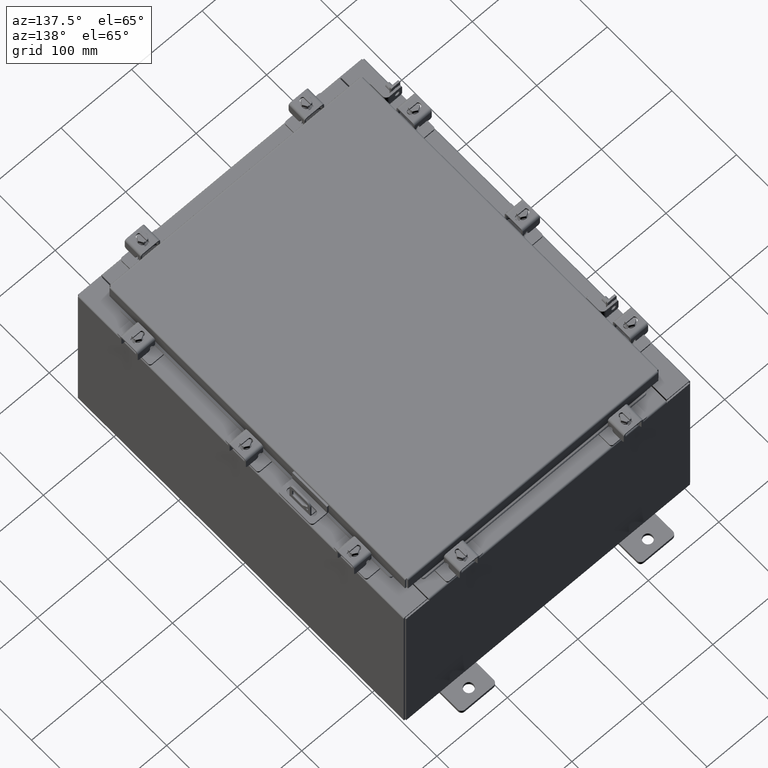
[diagram: clean part render]
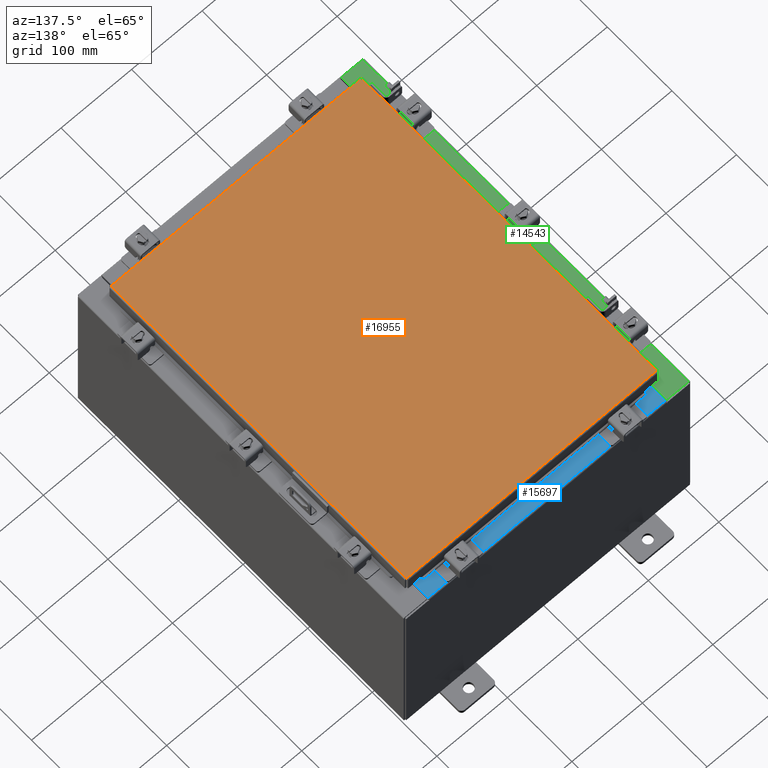
[diagram: same view with three faces highlighted in distinct colors, each labeled with its STEP entity id]
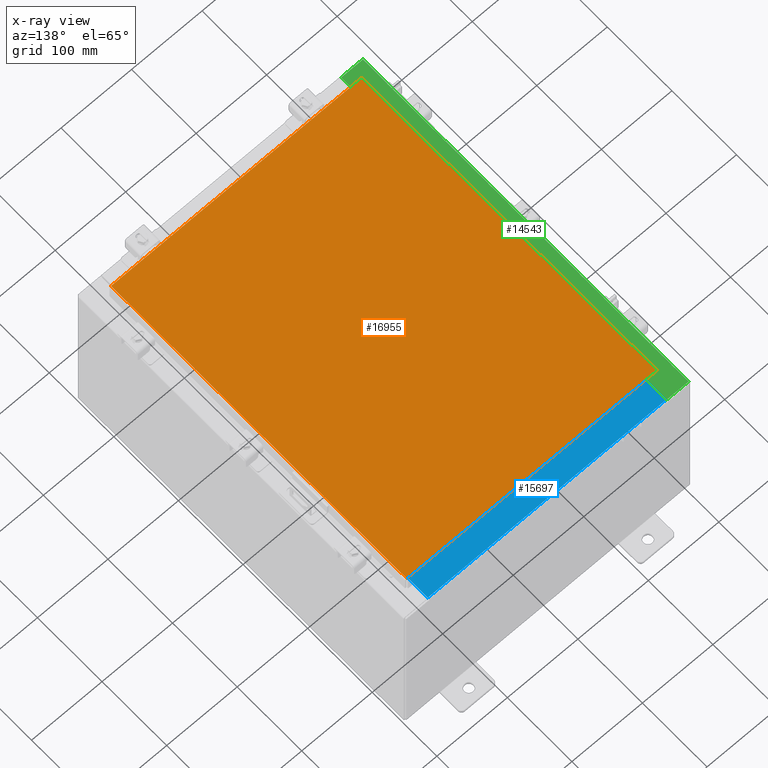
[diagram: x-ray of the same camera — body ghosted, the three highlighted faces saturated]
A machine part, auxiliary view with three faces highlighted in distinct colors.
The next image is the same camera in x-ray (body ghosted, the three faces saturated) — at least one of them is partly hidden behind the body in this view.
Their STEP definitions:

[orange] entity #16955 — the highlighted planar face has unit normal (0, 0, -1).
#26 = DIRECTION ( 'NONE',  ( 0.0000000000000000000, -1.000000000000000000, 0.0000000000000000000 ) ) ;
#29 = ORIENTED_EDGE ( 'NONE', *, *, #4834, .T. ) ;
#484 = AXIS2_PLACEMENT_3D ( 'NONE', #19545, #17881, #7437 ) ;
#1040 = VECTOR ( 'NONE', #15083, 39.37007874015748100 ) ;
#1662 = LINE ( 'NONE', #7092, #19625 ) ;
#2131 = LINE ( 'NONE', #2922, #1040 ) ;
#2922 = CARTESIAN_POINT ( 'NONE',  ( 6.990299999999996800, -9.006300000000003100, 0.0000000000000000000 ) ) ;
#4348 = LINE ( 'NONE', #7462, #13043 ) ;
#4638 = CARTESIAN_POINT ( 'NONE',  ( -6.990300000000003100, 9.006299999999996000, 0.0000000000000000000 ) ) ;
#4834 = EDGE_CURVE ( 'NONE', #9899, #10934, #2131, .T. ) ;
#5708 = PLANE ( 'NONE',  #484 ) ;
#6435 = CARTESIAN_POINT ( 'NONE',  ( 6.990299999999996800, -9.006300000000003100, 0.0000000000000000000 ) ) ;
#7092 = CARTESIAN_POINT ( 'NONE',  ( 6.990299999999996800, 9.006299999999996000, 0.0000000000000000000 ) ) ;
#7126 = LINE ( 'NONE', #8688, #11197 ) ;
#7437 = DIRECTION ( 'NONE',  ( -1.000000000000000000, 0.0000000000000000000, -0.0000000000000000000 ) ) ;
#7462 = CARTESIAN_POINT ( 'NONE',  ( -6.990300000000003100, -9.006300000000003100, 0.0000000000000000000 ) ) ;
#8688 = CARTESIAN_POINT ( 'NONE',  ( -6.990300000000003100, 9.006299999999996000, 0.0000000000000000000 ) ) ;
#9899 = VERTEX_POINT ( 'NONE', #6435 ) ;
#10934 = VERTEX_POINT ( 'NONE', #19260 ) ;
#11197 = VECTOR ( 'NONE', #26, 39.37007874015748100 ) ;
#11930 = EDGE_CURVE ( 'NONE', #20466, #17454, #7126, .T. ) ;
#12062 = FACE_OUTER_BOUND ( 'NONE', #15425, .T. ) ;
#12605 = CARTESIAN_POINT ( 'NONE',  ( -6.990300000000003100, -9.006300000000003100, 0.0000000000000000000 ) ) ;
#13043 = VECTOR ( 'NONE', #21385, 39.37007874015748100 ) ;
#15083 = DIRECTION ( 'NONE',  ( 0.0000000000000000000, 1.000000000000000000, 0.0000000000000000000 ) ) ;
#15425 = EDGE_LOOP ( 'NONE', ( #16444, #29, #17521, #17210 ) ) ;
#16444 = ORIENTED_EDGE ( 'NONE', *, *, #19528, .T. ) ;
#16955 = ADVANCED_FACE ( 'NONE', ( #12062 ), #5708, .F. ) ;
#17210 = ORIENTED_EDGE ( 'NONE', *, *, #11930, .T. ) ;
#17454 = VERTEX_POINT ( 'NONE', #12605 ) ;
#17521 = ORIENTED_EDGE ( 'NONE', *, *, #18067, .T. ) ;
#17537 = DIRECTION ( 'NONE',  ( -1.000000000000000000, -0.0000000000000000000, -0.0000000000000000000 ) ) ;
#17881 = DIRECTION ( 'NONE',  ( 0.0000000000000000000, 0.0000000000000000000, -1.000000000000000000 ) ) ;
#18067 = EDGE_CURVE ( 'NONE', #10934, #20466, #1662, .T. ) ;
#19260 = CARTESIAN_POINT ( 'NONE',  ( 6.990299999999996800, 9.006299999999996000, 0.0000000000000000000 ) ) ;
#19528 = EDGE_CURVE ( 'NONE', #17454, #9899, #4348, .T. ) ;
#19545 = CARTESIAN_POINT ( 'NONE',  ( 0.0000000000000000000, 0.0000000000000000000, 0.0000000000000000000 ) ) ;
#19625 = VECTOR ( 'NONE', #17537, 39.37007874015748100 ) ;
#20466 = VERTEX_POINT ( 'NONE', #4638 ) ;
#21385 = DIRECTION ( 'NONE',  ( 1.000000000000000000, -0.0000000000000000000, -0.0000000000000000000 ) ) ;

[blue] entity #15697 — the highlighted planar face has unit normal (0, 0, 1).
#196 = PLANE ( 'NONE',  #22366 ) ;
#1093 = CARTESIAN_POINT ( 'NONE',  ( -6.637200000000000000, -1.287299999999999200, 5.000000000000004400 ) ) ;
#1137 = DIRECTION ( 'NONE',  ( -0.0000000000000000000, 1.000000000000000000, -3.566381192773190000E-015 ) ) ;
#2512 = VERTEX_POINT ( 'NONE', #16252 ) ;
#2663 = VECTOR ( 'NONE', #7457, 39.37007874015748100 ) ;
#3701 = CARTESIAN_POINT ( 'NONE',  ( 0.0000000000000000000, 1.748382715945128500E-014, 5.000000000000000000 ) ) ;
#3709 = ORIENTED_EDGE ( 'NONE', *, *, #21576, .F. ) ;
#5441 = DIRECTION ( 'NONE',  ( 0.0000000000000000000, -1.000000000000000000, 3.566381192773190000E-015 ) ) ;
#6313 = VERTEX_POINT ( 'NONE', #13778 ) ;
#6727 = LINE ( 'NONE', #19630, #2663 ) ;
#7457 = DIRECTION ( 'NONE',  ( -1.000000000000000000, 0.0000000000000000000, 0.0000000000000000000 ) ) ;
#7987 = ORIENTED_EDGE ( 'NONE', *, *, #19775, .F. ) ;
#8112 = ORIENTED_EDGE ( 'NONE', *, *, #18216, .F. ) ;
#9214 = VECTOR ( 'NONE', #1137, 39.37007874015748100 ) ;
#9222 = DIRECTION ( 'NONE',  ( -0.0000000000000000000, -1.000000000000000000, 3.566381192773190000E-015 ) ) ;
#9508 = EDGE_CURVE ( 'NONE', #18554, #2512, #13960, .T. ) ;
#10738 = FACE_OUTER_BOUND ( 'NONE', #11143, .T. ) ;
#11122 = ORIENTED_EDGE ( 'NONE', *, *, #9508, .T. ) ;
#11143 = EDGE_LOOP ( 'NONE', ( #7987, #3709, #8112, #11122 ) ) ;
#12271 = VECTOR ( 'NONE', #9222, 39.37007874015748100 ) ;
#13778 = CARTESIAN_POINT ( 'NONE',  ( 6.637200000000000000, -1.287300000000000300, 5.000000000000004400 ) ) ;
#13960 = LINE ( 'NONE', #17326, #18595 ) ;
#15404 = VERTEX_POINT ( 'NONE', #1093 ) ;
#15697 = ADVANCED_FACE ( 'NONE', ( #10738 ), #196, .T. ) ;
#15855 = DIRECTION ( 'NONE',  ( 0.0000000000000000000, 3.566381192773190000E-015, 1.000000000000000000 ) ) ;
#16252 = CARTESIAN_POINT ( 'NONE',  ( -6.637200000000000000, -0.08770000000000026400, 5.000000000000000000 ) ) ;
#17326 = CARTESIAN_POINT ( 'NONE',  ( 0.0000000000000000000, -0.08770000000000026400, 5.000000000000000000 ) ) ;
#18216 = EDGE_CURVE ( 'NONE', #18554, #6313, #22046, .T. ) ;
#18554 = VERTEX_POINT ( 'NONE', #22210 ) ;
#18595 = VECTOR ( 'NONE', #19058, 39.37007874015748100 ) ;
#19017 = LINE ( 'NONE', #21969, #9214 ) ;
#19058 = DIRECTION ( 'NONE',  ( -1.000000000000000000, 0.0000000000000000000, 0.0000000000000000000 ) ) ;
#19630 = CARTESIAN_POINT ( 'NONE',  ( 6.637200000000000900, -1.287300000000000300, 5.000000000000004400 ) ) ;
#19775 = EDGE_CURVE ( 'NONE', #15404, #2512, #19017, .T. ) ;
#21400 = CARTESIAN_POINT ( 'NONE',  ( 6.637200000000000000, -1.300299999999999300, 5.000000000000004400 ) ) ;
#21576 = EDGE_CURVE ( 'NONE', #6313, #15404, #6727, .T. ) ;
#21969 = CARTESIAN_POINT ( 'NONE',  ( -6.637200000000000000, -0.07470000000000015500, 5.000000000000000000 ) ) ;
#22046 = LINE ( 'NONE', #21400, #12271 ) ;
#22210 = CARTESIAN_POINT ( 'NONE',  ( 6.637199999999999100, -0.08770000000000026400, 5.000000000000000000 ) ) ;
#22366 = AXIS2_PLACEMENT_3D ( 'NONE', #3701, #15855, #5441 ) ;

[green] entity #14543 — the highlighted planar face has unit normal (0, -0, -1).
#269 = FACE_OUTER_BOUND ( 'NONE', #21000, .T. ) ;
#373 = AXIS2_PLACEMENT_3D ( 'NONE', #15906, #7275, #19471 ) ;
#513 = DIRECTION ( 'NONE',  ( 1.000000000000000000, 0.0000000000000000000, 0.0000000000000000000 ) ) ;
#673 = LINE ( 'NONE', #16534, #18639 ) ;
#688 = CARTESIAN_POINT ( 'NONE',  ( -6.699700000000031100, 3.551267524076143900E-016, 9.925300000000007100 ) ) ;
#830 = CARTESIAN_POINT ( 'NONE',  ( -6.750050000000037200, 8.593749999999998200, 9.925300000000001800 ) ) ;
#907 = ORIENTED_EDGE ( 'NONE', *, *, #12522, .F. ) ;
#978 = VERTEX_POINT ( 'NONE', #9021 ) ;
#1100 = ORIENTED_EDGE ( 'NONE', *, *, #15213, .F. ) ;
#1118 = DIRECTION ( 'NONE',  ( 1.000000000000000000, 0.0000000000000000000, 0.0000000000000000000 ) ) ;
#1294 = CARTESIAN_POINT ( 'NONE',  ( -8.875432178745955900E-014, -9.925300000000030200, 9.925300000000042600 ) ) ;
#1600 = VECTOR ( 'NONE', #4445, 39.37007874015748100 ) ;
#2132 = CARTESIAN_POINT ( 'NONE',  ( -6.712700000000037200, 8.593750000000000000, 9.925300000000001800 ) ) ;
#2237 = AXIS2_PLACEMENT_3D ( 'NONE', #21342, #10907, #513 ) ;
#2682 = DIRECTION ( 'NONE',  ( -0.0000000000000000000, 1.000000000000000000, -1.100963394019027600E-016 ) ) ;
#3024 = EDGE_CURVE ( 'NONE', #21257, #8330, #12807, .T. ) ;
#3066 = DIRECTION ( 'NONE',  ( 1.000000000000000000, -3.566381192773182900E-015, 5.349571789159775100E-015 ) ) ;
#3308 = CARTESIAN_POINT ( 'NONE',  ( -6.750050000000037200, 8.593749999999998200, 9.925300000000005300 ) ) ;
#3853 = CARTESIAN_POINT ( 'NONE',  ( -6.699700000000032000, 8.631099999999998200, 9.925300000000005300 ) ) ;
#3933 = CARTESIAN_POINT ( 'NONE',  ( -6.699700000000032000, 8.631099999999998200, 9.925300000000007100 ) ) ;
#3948 = LINE ( 'NONE', #1294, #8544 ) ;
#4189 = AXIS2_PLACEMENT_3D ( 'NONE', #4263, #16410, #5976 ) ;
#4263 = CARTESIAN_POINT ( 'NONE',  ( -6.750050000000037200, 8.612424999999998200, 9.925300000000001800 ) ) ;
#4445 = DIRECTION ( 'NONE',  ( -1.000000000000000000, 9.633926942233118900E-046, -5.349571789159775100E-015 ) ) ;
#4493 = EDGE_CURVE ( 'NONE', #18183, #13941, #15755, .T. ) ;
#4595 = ORIENTED_EDGE ( 'NONE', *, *, #19678, .T. ) ;
#4741 = CARTESIAN_POINT ( 'NONE',  ( -6.712700000000037200, -8.593750000000008900, 9.925300000000001800 ) ) ;
#5147 = EDGE_CURVE ( 'NONE', #8330, #7367, #9993, .T. ) ;
#5566 = PLANE ( 'NONE',  #373 ) ;
#5937 = VECTOR ( 'NONE', #21289, 39.37007874015748100 ) ;
#5976 = DIRECTION ( 'NONE',  ( 1.000000000000000000, 0.0000000000000000000, 0.0000000000000000000 ) ) ;
#6019 = CIRCLE ( 'NONE', #2237, 0.01867499999999949400 ) ;
#6212 = EDGE_CURVE ( 'NONE', #7367, #7682, #15156, .T. ) ;
#6216 = CARTESIAN_POINT ( 'NONE',  ( -6.699700000000030200, -8.631100000000007100, 9.925300000000007100 ) ) ;
#6227 = LINE ( 'NONE', #7901, #1600 ) ;
#6264 = VERTEX_POINT ( 'NONE', #8375 ) ;
#6466 = CARTESIAN_POINT ( 'NONE',  ( -6.750050000000037200, -8.631100000000008900, 9.925300000000001800 ) ) ;
#6896 = VERTEX_POINT ( 'NONE', #10378 ) ;
#7275 = DIRECTION ( 'NONE',  ( 5.349571789159774300E-015, -1.100963394019027400E-016, -1.000000000000000000 ) ) ;
#7367 = VERTEX_POINT ( 'NONE', #4741 ) ;
#7660 = DIRECTION ( 'NONE',  ( -1.100963394019027400E-016, 1.000000000000000000, -1.100963394019033500E-016 ) ) ;
#7682 = VERTEX_POINT ( 'NONE', #10841 ) ;
#7718 = LINE ( 'NONE', #688, #11806 ) ;
#7864 = DIRECTION ( 'NONE',  ( -1.100963394019027400E-016, 1.000000000000000000, -1.100963394019033500E-016 ) ) ;
#7901 = CARTESIAN_POINT ( 'NONE',  ( -5.335691853502976200E-014, 9.925299999999998200, 9.925300000000042600 ) ) ;
#8330 = VERTEX_POINT ( 'NONE', #9010 ) ;
#8375 = CARTESIAN_POINT ( 'NONE',  ( -7.912300000000032100, -9.925300000000001800, 9.925300000000000000 ) ) ;
#8544 = VECTOR ( 'NONE', #3066, 39.37007874015748100 ) ;
#8752 = EDGE_CURVE ( 'NONE', #6264, #978, #3948, .T. ) ;
#8772 = ORIENTED_EDGE ( 'NONE', *, *, #5147, .F. ) ;
#9010 = CARTESIAN_POINT ( 'NONE',  ( -6.712700000000037200, 8.593749999999998200, 9.925300000000001800 ) ) ;
#9021 = CARTESIAN_POINT ( 'NONE',  ( -6.699700000000030200, -9.925300000000005300, 9.925300000000007100 ) ) ;
#9125 = EDGE_CURVE ( 'NONE', #978, #20393, #7718, .T. ) ;
#9141 = CIRCLE ( 'NONE', #4189, 0.01867499999999949400 ) ;
#9304 = LINE ( 'NONE', #21776, #13926 ) ;
#9959 = VECTOR ( 'NONE', #10027, 39.37007874015748100 ) ;
#9993 = LINE ( 'NONE', #2132, #5937 ) ;
#10027 = DIRECTION ( 'NONE',  ( -1.000000000000000000, 0.0000000000000000000, 0.0000000000000000000 ) ) ;
#10322 = VECTOR ( 'NONE', #11699, 39.37007874015748100 ) ;
#10378 = CARTESIAN_POINT ( 'NONE',  ( -7.912300000000032100, 9.925299999999998200, 9.925299999999998200 ) ) ;
#10551 = ORIENTED_EDGE ( 'NONE', *, *, #17641, .T. ) ;
#10819 = DIRECTION ( 'NONE',  ( -1.000000000000000000, 0.0000000000000000000, -4.340572780399628200E-014 ) ) ;
#10841 = CARTESIAN_POINT ( 'NONE',  ( -6.750050000000037200, -8.593750000000008900, 9.925300000000007100 ) ) ;
#10907 = DIRECTION ( 'NONE',  ( -5.349571789159774300E-015, 1.100963394019027400E-016, 1.000000000000000000 ) ) ;
#10951 = CARTESIAN_POINT ( 'NONE',  ( -6.750050000000037200, 8.631099999999998200, 9.925300000000005300 ) ) ;
#10962 = VERTEX_POINT ( 'NONE', #14010 ) ;
#11699 = DIRECTION ( 'NONE',  ( 1.000000000000000000, 0.0000000000000000000, 4.340572780399439500E-014 ) ) ;
#11806 = VECTOR ( 'NONE', #7660, 39.37007874015748100 ) ;
#12522 = EDGE_CURVE ( 'NONE', #7682, #10962, #6019, .T. ) ;
#12807 = LINE ( 'NONE', #830, #20964 ) ;
#12885 = ORIENTED_EDGE ( 'NONE', *, *, #14223, .F. ) ;
#13926 = VECTOR ( 'NONE', #7864, 39.37007874015748100 ) ;
#13941 = VERTEX_POINT ( 'NONE', #10951 ) ;
#14010 = CARTESIAN_POINT ( 'NONE',  ( -6.750050000000037200, -8.631100000000008900, 9.925300000000005300 ) ) ;
#14223 = EDGE_CURVE ( 'NONE', #10962, #20393, #15523, .T. ) ;
#14264 = ORIENTED_EDGE ( 'NONE', *, *, #4493, .F. ) ;
#14543 = ADVANCED_FACE ( 'NONE', ( #269 ), #5566, .F. ) ;
#15156 = LINE ( 'NONE', #20473, #9959 ) ;
#15213 = EDGE_CURVE ( 'NONE', #13941, #21257, #9141, .T. ) ;
#15523 = LINE ( 'NONE', #6466, #10322 ) ;
#15755 = LINE ( 'NONE', #3853, #19825 ) ;
#15906 = CARTESIAN_POINT ( 'NONE',  ( -5.335691853502976200E-014, 1.092739197465705300E-015, 9.925300000000042600 ) ) ;
#15998 = EDGE_CURVE ( 'NONE', #6264, #6896, #673, .T. ) ;
#16410 = DIRECTION ( 'NONE',  ( -5.349571789159774300E-015, 1.100963394019027400E-016, 1.000000000000000000 ) ) ;
#16534 = CARTESIAN_POINT ( 'NONE',  ( -7.912300000000032100, 9.925299999999998200, 9.925299999999998200 ) ) ;
#16971 = ORIENTED_EDGE ( 'NONE', *, *, #6212, .F. ) ;
#17414 = ORIENTED_EDGE ( 'NONE', *, *, #15998, .F. ) ;
#17641 = EDGE_CURVE ( 'NONE', #18183, #18134, #9304, .T. ) ;
#17669 = CARTESIAN_POINT ( 'NONE',  ( -6.699700000000032000, 9.925299999999998200, 9.925300000000007100 ) ) ;
#18134 = VERTEX_POINT ( 'NONE', #17669 ) ;
#18183 = VERTEX_POINT ( 'NONE', #3933 ) ;
#18639 = VECTOR ( 'NONE', #2682, 39.37007874015748100 ) ;
#19471 = DIRECTION ( 'NONE',  ( -1.000000000000000000, 0.0000000000000000000, -5.349571789159774300E-015 ) ) ;
#19678 = EDGE_CURVE ( 'NONE', #18134, #6896, #6227, .T. ) ;
#19825 = VECTOR ( 'NONE', #10819, 39.37007874015748100 ) ;
#20279 = ORIENTED_EDGE ( 'NONE', *, *, #8752, .T. ) ;
#20393 = VERTEX_POINT ( 'NONE', #6216 ) ;
#20473 = CARTESIAN_POINT ( 'NONE',  ( -6.712700000000037200, -8.593750000000008900, 9.925300000000001800 ) ) ;
#20964 = VECTOR ( 'NONE', #1118, 39.37007874015748100 ) ;
#21000 = EDGE_LOOP ( 'NONE', ( #14264, #10551, #4595, #17414, #20279, #22325, #12885, #907, #16971, #8772, #21070, #1100 ) ) ;
#21070 = ORIENTED_EDGE ( 'NONE', *, *, #3024, .F. ) ;
#21257 = VERTEX_POINT ( 'NONE', #3308 ) ;
#21289 = DIRECTION ( 'NONE',  ( -0.0000000000000000000, -1.000000000000000000, -0.0000000000000000000 ) ) ;
#21342 = CARTESIAN_POINT ( 'NONE',  ( -6.750050000000037200, -8.612425000000007100, 9.925300000000001800 ) ) ;
#21776 = CARTESIAN_POINT ( 'NONE',  ( -6.699700000000031100, 3.551267524076143900E-016, 9.925300000000007100 ) ) ;
#22325 = ORIENTED_EDGE ( 'NONE', *, *, #9125, .T. ) ;